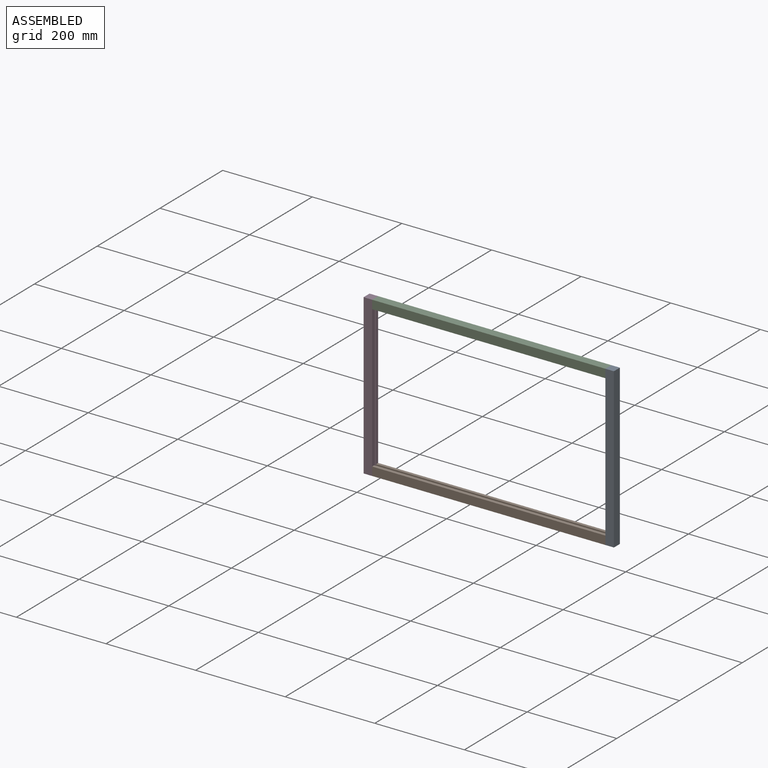
[diagram: assembled view]
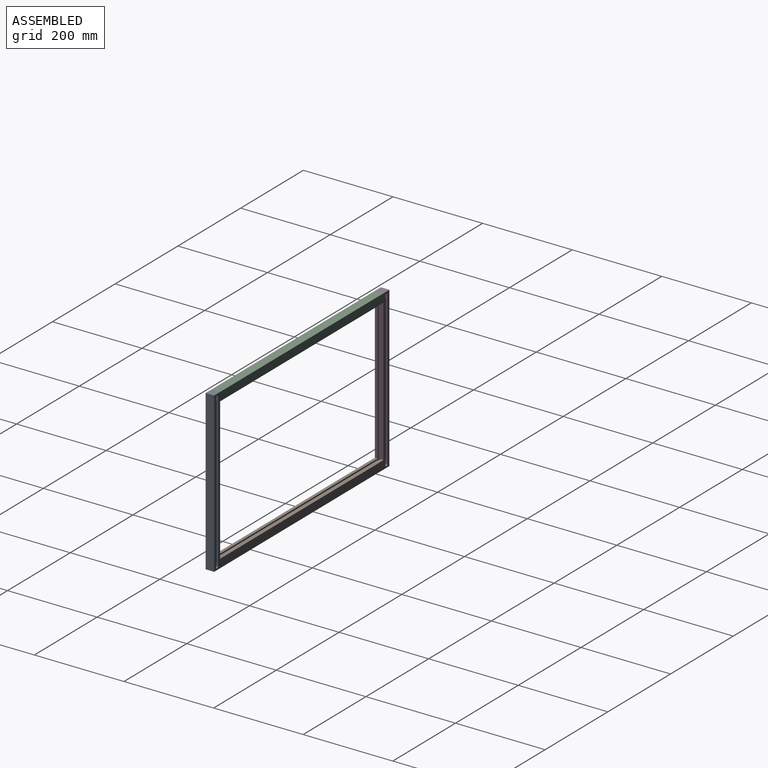
[diagram: assembled view, second angle]
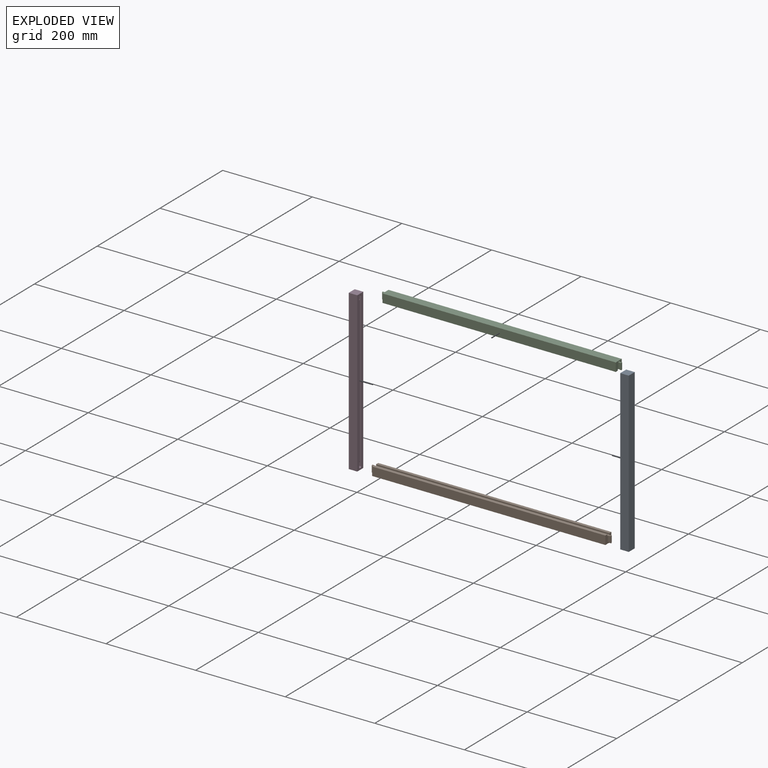
[diagram: exploded view]
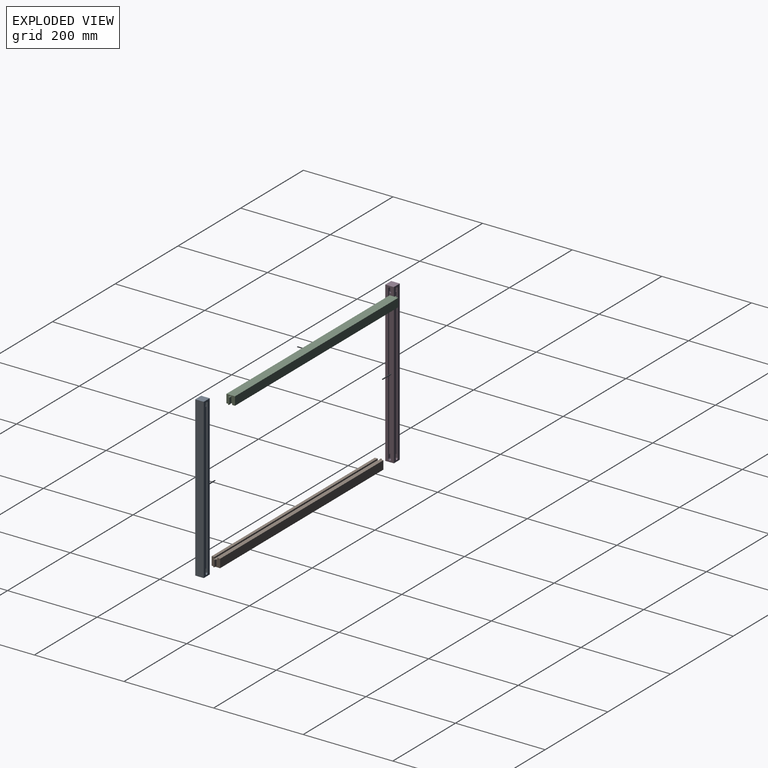
[diagram: exploded view, second angle]
ASSEMBLY  parts=4 mates=3
PART A: 24 faces, bbox 19.1x19.1x355.6 mm
  f0: plane 355.6x19.05mm, normal (0,-1,0), area 4565.1mm2, adj f3,f4,f6,f7,f16,f19,f20,f21
  f1: cylinder r=3.17mm len=6.35mm, axis (1,0,0), area 31.4mm2, adj f9,f10,f12,f14
  f2: cylinder r=3.17mm len=6.35mm, axis (1,0,0), area 31.4mm2, adj f10,f12,f13,f14
  f3: plane 355.6x19.05mm, normal (1,0,0), area 4565.1mm2, adj f0,f5,f6,f7,f8,f10,f11,f12
  f4: plane 355.6x19.05mm, normal (-1,0,0), area 6774.2mm2, adj f0,f5,f6,f7
  f5: plane 355.6x19.05mm, normal (0,1,0), area 6774.2mm2, adj f3,f4,f6,f7
  f6: plane 19.05x19.05mm, normal (0,0,1), area 362.9mm2, adj f0,f3,f4,f5
  f7: plane 19.05x19.05mm, normal (0,0,-1), area 362.9mm2, adj f0,f3,f4,f5
  f8: cylinder r=3.17mm len=6.35mm, axis (1,0,0), area 63.1mm2, adj f3,f9,f10,f12
  f9: plane 12.7x6.35mm, normal (1,0,0), area 72mm2, adj f1,f8,f10,f12
  f10: plane 342.9x6.32mm, normal (0,1,0), area 1128.7mm2, adj f1,f2,f3,f8,f9,f11,f13,f14
  f11: cylinder r=3.17mm len=6.35mm, axis (1,0,0), area 63.1mm2, adj f3,f10,f12,f13
  f12: plane 342.9x6.32mm, normal (0,-1,0), area 1128.7mm2, adj f1,f2,f3,f8,f9,f11,f13,f14
  f13: plane 12.7x6.35mm, normal (1,0,0), area 72mm2, adj f2,f10,f11,f12
  f14: plane 330.2x6.35mm, normal (1,0,0), area 2065.1mm2, adj f1,f2,f10,f12
  f15: cylinder r=3.17mm len=6.35mm, axis (0,-1,0), area 31.6mm2, adj f17,f19,f21,f23
  f16: cylinder r=3.17mm len=6.35mm, axis (0,-1,0), area 63.3mm2, adj f0,f17,f19,f21
  f17: plane 12.7x6.35mm, normal (0,-1,0), area 72mm2, adj f15,f16,f19,f21
  f18: cylinder r=3.17mm len=6.35mm, axis (0,-1,0), area 31.6mm2, adj f19,f21,f22,f23
  f19: plane 342.9x6.35mm, normal (1,0,0), area 1129mm2, adj f0,f15,f16,f17,f18,f20,f22,f23
  f20: cylinder r=3.17mm len=6.35mm, axis (0,-1,0), area 63.3mm2, adj f0,f19,f21,f22
  f21: plane 342.9x6.35mm, normal (-1,0,0), area 1129mm2, adj f0,f15,f16,f17,f18,f20,f22,f23
  f22: plane 12.7x6.35mm, normal (0,-1,0), area 72mm2, adj f18,f19,f20,f21
  f23: plane 330.2x6.35mm, normal (0,-1,0), area 2065.1mm2, adj f15,f18,f19,f21
PART B: 22 faces, bbox 533.4x19.1x19.1 mm
  f0: plane 19.05x19.05mm, normal (1,0,0), area 298.5mm2, adj f1,f5,f6,f7,f8,f9,f10,f11
  f1: plane 520.7x6.35mm, normal (0,0,1), area 3306.4mm2, adj f0,f2,f5,f21
  f2: plane 19.05x19.05mm, normal (-1,0,0), area 298.5mm2, adj f1,f5,f6,f7,f8,f13,f14,f15
  f3: cylinder r=1.59mm len=3.6mm, axis (-1,0,0), area 16.9mm2, adj f10,f11,f12,f20
  f4: cylinder r=1.59mm len=3.6mm, axis (1,0,0), area 16.9mm2, adj f14,f15,f16,f18
  f5: plane 520.7x19.05mm, normal (0,1,0), area 9919.3mm2, adj f0,f1,f2,f8
  f6: plane 520.7x6.35mm, normal (0,0,1), area 3306.4mm2, adj f0,f2,f7,f19
  f7: plane 520.7x19.05mm, normal (0,-1,0), area 9919.3mm2, adj f0,f2,f6,f8
  f8: plane 520.7x19.05mm, normal (0,0,-1), area 9919.3mm2, adj f0,f2,f5,f7
  f9: cylinder r=1.59mm len=6.35mm, axis (-1,0,0), area 31.7mm2, adj f0,f10,f11,f12
  f10: plane 12.7x6.35mm, normal (0,1,0), area 80.6mm2, adj f0,f3,f9,f12,f17
  f11: plane 12.7x6.35mm, normal (0,-1,0), area 80.6mm2, adj f0,f3,f9,f12,f17
  f12: plane 15.88x3.18mm, normal (1,0,0), area 48.2mm2, adj f3,f9,f10,f11
  f13: cylinder r=1.59mm len=6.35mm, axis (1,0,0), area 31.7mm2, adj f2,f14,f15,f16
  f14: plane 12.7x6.35mm, normal (0,-1,0), area 80.6mm2, adj f2,f4,f13,f16,f17
  f15: plane 12.7x6.35mm, normal (0,1,0), area 80.6mm2, adj f2,f4,f13,f16,f17
  f16: plane 15.88x3.18mm, normal (-1,0,0), area 48.2mm2, adj f4,f13,f14,f15
  f17: plane 527.05x6.35mm, normal (0,0,1), area 3325.7mm2, adj f0,f2,f10,f11,f14,f15,f18,f19
  f18: cylinder r=3.17mm len=3.18mm, axis (0,0,1), area 4.1mm2, adj f4,f17
  f19: plane 520.7x3.18mm, normal (0,1,0), area 1653.2mm2, adj f0,f2,f6,f17
  f20: cylinder r=3.17mm len=3.18mm, axis (0,0,1), area 4.1mm2, adj f3,f17
  f21: plane 520.7x3.18mm, normal (0,-1,0), area 1653.2mm2, adj f0,f1,f2,f17
PART C: same geometry as B
PART D: same geometry as A
PLACE A rot(axis=(-0.71,-0.71,0),180deg) t=(334.32,275.21,530.64)mm
PLACE B t=(-205.43,275.21,175.04)mm
PLACE C rot(axis=(1,0,0),180deg) t=(-205.43,256.16,530.64)mm
PLACE D rot(axis=(1,0,0),180deg) t=(-205.43,256.16,530.64)mm
MATE fastened D.f3 <-> B.f2  axis (1,0,0) through (-205.43,256.16,175.04)mm
MATE fastened C.f7 <-> D.f0  axis (0,1,0) through (-205.43,275.21,530.64)mm
MATE fastened B.f0 <-> A.f0  axis (1,0,0) through (315.27,256.16,175.04)mm
